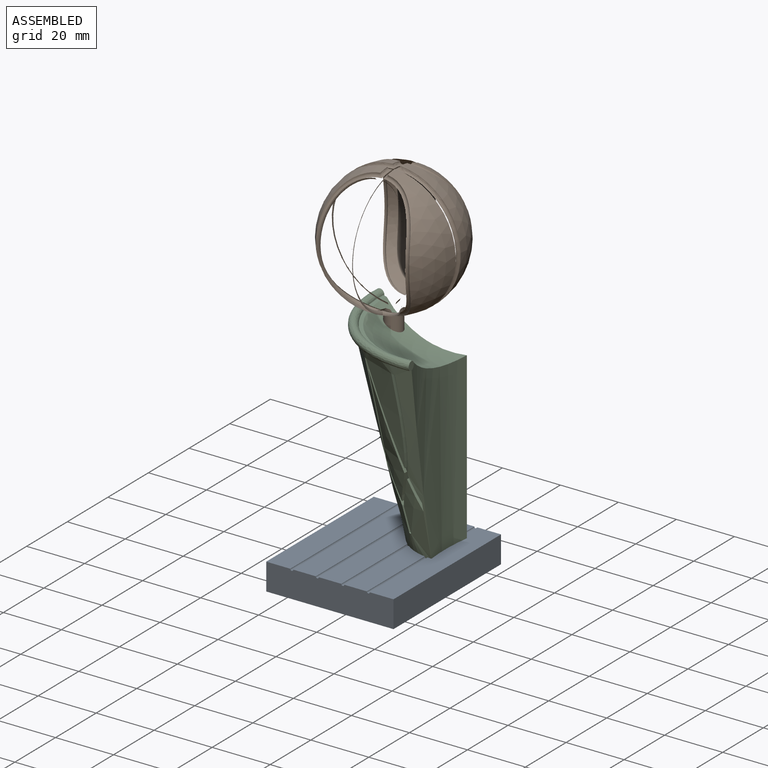
[diagram: assembled view]
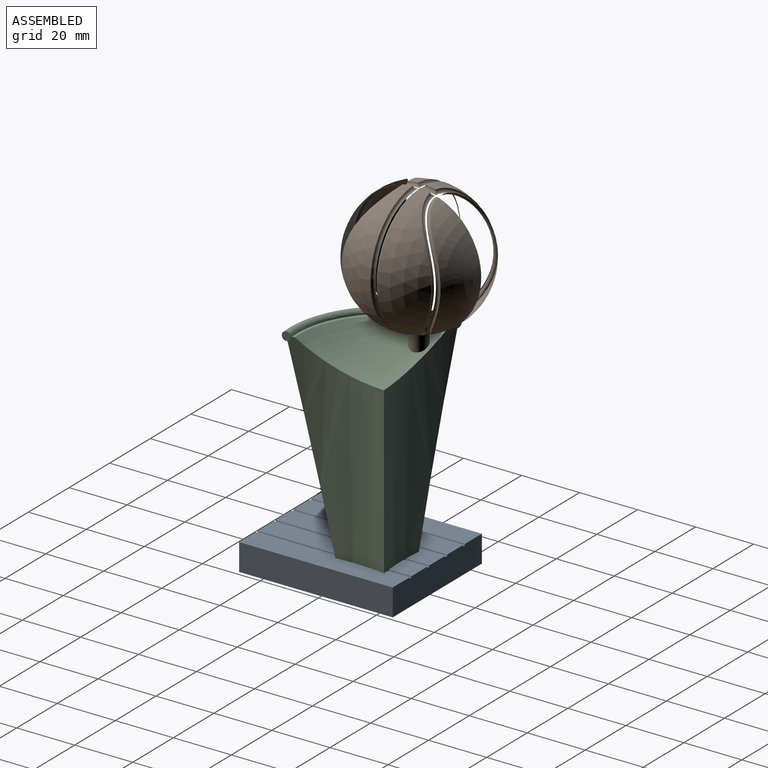
[diagram: assembled view, second angle]
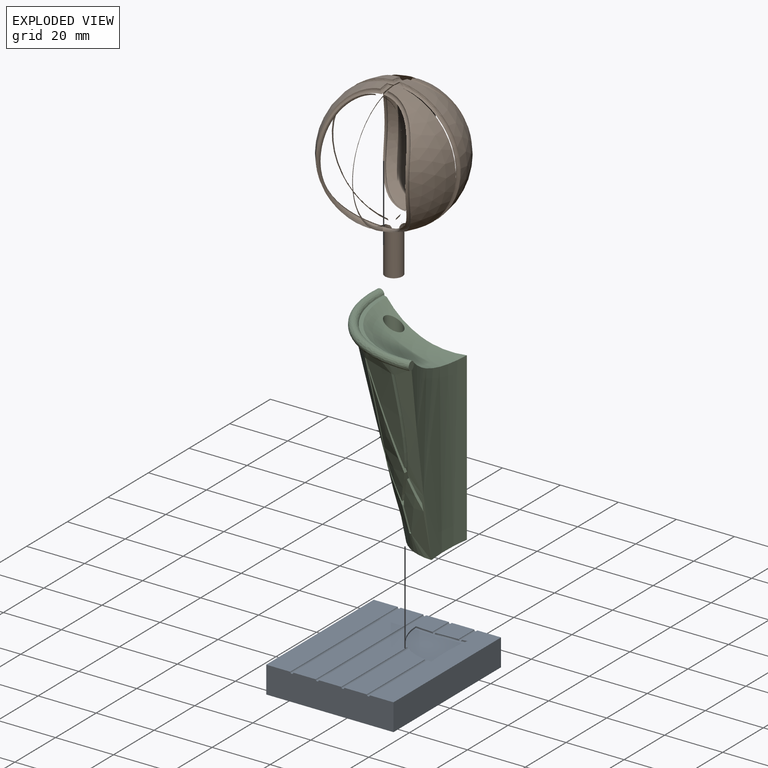
[diagram: exploded view]
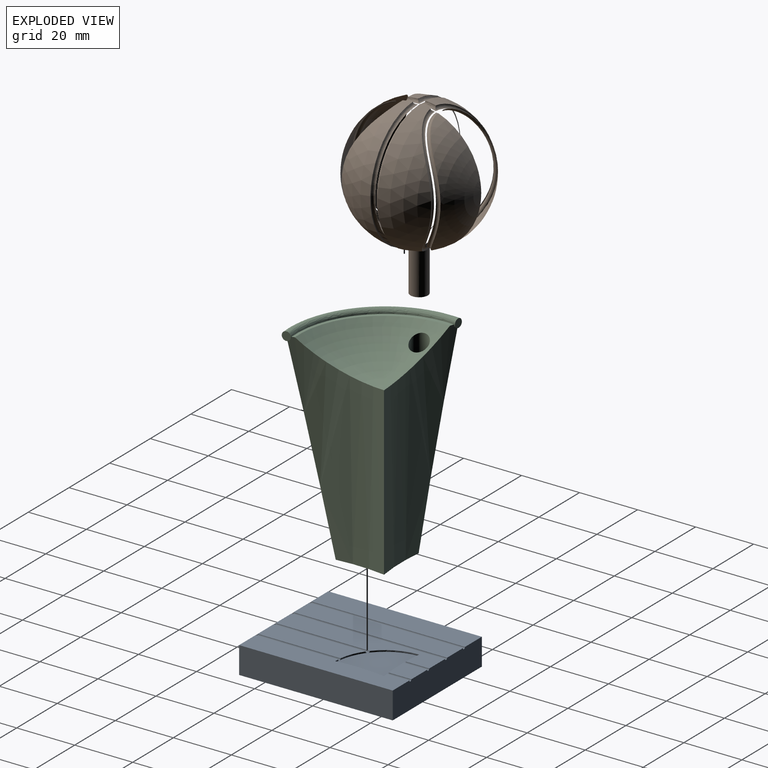
[diagram: exploded view, second angle]
ASSEMBLY  parts=3 mates=2
PART A: 25 faces, bbox 43.9x53x9.3 mm
  f0: plane 31.72x7.8mm, normal (0,0,1), area 232mm2, adj f1,f2,f9,f20
  f1: cylinder r=0.5mm len=28.54mm, axis (0,-1,0), area 44.7mm2, adj f0,f9,f12,f20,f21
  f2: cylinder r=0.5mm len=32.51mm, axis (0,-1,0), area 50.4mm2, adj f0,f5,f9,f20,f22
  f3: plane 52.95x8.3mm, normal (0,0,1), area 439.5mm2, adj f7,f9,f10,f16
  f4: plane 52.95x7.8mm, normal (0,0,1), area 413mm2, adj f7,f9,f15,f16
  f5: plane 52.95x7.8mm, normal (0,0,1), area 361.9mm2, adj f2,f7,f9,f14,f15,f19,f22
  f6: plane 8.12x7.8mm, normal (0,0,1), area 62.6mm2, adj f7,f13,f14,f17
  f7: plane 43.89x9.3mm, normal (0,1,0), area 406.6mm2, adj f3,f4,f5,f6,f8,f10,f11,f12
  f8: plane 52.95x9.3mm, normal (1,0,0), area 492.5mm2, adj f7,f9,f11,f12
  f9: plane 43.89x9.3mm, normal (0,-1,0), area 406.6mm2, adj f0,f1,f2,f3,f4,f5,f8,f10
  f10: plane 52.95x9.3mm, normal (-1,0,0), area 492.5mm2, adj f3,f7,f9,f11
  f11: plane 52.95x43.89mm, normal (0,0,-1), area 2323.9mm2, adj f7,f8,f9,f10
  f12: plane 52.95x8.19mm, normal (0,0,1), area 412.7mm2, adj f1,f7,f8,f9,f13,f18,f21,f24
  f13: cylinder r=0.5mm len=7.78mm, axis (0,-1,0), area 12.1mm2, adj f6,f7,f12,f17,f18
  f14: cylinder r=0.5mm len=8.11mm, axis (0,-1,0), area 12.7mm2, adj f5,f6,f7,f17,f19
  f15: cylinder r=0.5mm len=52.95mm, axis (0,-1,0), area 83.2mm2, adj f4,f5,f7,f9
  f16: cylinder r=0.5mm len=52.95mm, axis (0,-1,0), area 83.2mm2, adj f3,f4,f7,f9
  f17: cylinder r=68.01mm len=8.8mm, axis (0,0,1), area 4mm2, adj f6,f13,f14,f23
  f18: cylinder r=68.01mm len=2.29mm, axis (0,0,1), area 1mm2, adj f12,f13,f23,f24
  f19: cylinder r=68.01mm len=6.48mm, axis (0,0,1), area 3.1mm2, adj f5,f14,f22,f23
  f20: cylinder r=17.14mm len=8.8mm, axis (0,0,1), area 4.4mm2, adj f0,f1,f2,f23
  f21: cylinder r=17.14mm len=1.91mm, axis (0,0,1), area 0.8mm2, adj f1,f12,f23,f24
  f22: cylinder r=17.14mm len=13.21mm, axis (0,0,1), area 7.3mm2, adj f2,f5,f19,f23
  f23: plane 17.57x17.14mm, normal (0,0,1), area 219.8mm2, adj f17,f18,f19,f20,f21,f22,f24
  f24: cylinder r=65.24mm len=17.14mm, axis (0,0,1), area 8.6mm2, adj f12,f18,f21,f23
PART B: 67 faces, bbox 48.2x74.6x61.6 mm
  f0: sphere r=21.25mm, area 4070mm2, adj f1,f5,f6,f10,f11,f15,f16,f20
  f1: bspline ~42.71x15.5mm, area 84.1mm2, adj f0,f2,f3,f4,f5
  f2: torus R=22.28mm, axis (1,0,0), area 7.3mm2, adj f1,f3,f5
  f3: sphere r=22.28mm, area 570.8mm2, adj f1,f2,f4
  f4: cylinder r=15mm len=32.35mm, axis (0,0,-1), area 3048.5mm2, adj f1,f3
  f5: torus R=22.25mm, axis (1,0,0), area 78.6mm2, adj f0,f1,f2
  f6: bspline ~42.7x15.45mm, area 84.1mm2, adj f0,f7,f8,f9,f10
  f7: torus R=22.28mm, axis (1,0,0), area 7.3mm2, adj f6,f8,f10
  f8: sphere r=22.28mm, area 570.8mm2, adj f6,f7,f9
  f9: cylinder r=15mm len=32.35mm, axis (0,0,-1), area 3048.5mm2, adj f6,f8
  f10: torus R=22.25mm, axis (-1,0,0), area 78.6mm2, adj f0,f6,f7
  f11: bspline ~42.71x15.5mm, area 84.1mm2, adj f0,f12,f13,f14,f15
  f12: torus R=22.28mm, axis (1,0,0), area 7.3mm2, adj f11,f13,f15
  f13: sphere r=22.28mm, area 570.8mm2, adj f11,f12,f14
  f14: cylinder r=15mm len=32.35mm, axis (0,0,-1), area 3048.5mm2, adj f11,f13
  f15: torus R=22.25mm, axis (-1,0,0), area 78.6mm2, adj f0,f11,f12
  f16: torus R=22.25mm, axis (1,0,0), area 78.6mm2, adj f0,f17,f20
  f17: torus R=22.28mm, axis (1,0,0), area 7.3mm2, adj f16,f18,f20
  f18: sphere r=22.28mm, area 570.8mm2, adj f17,f19,f20
  f19: cylinder r=15mm len=32.35mm, axis (0,0,-1), area 3048.5mm2, adj f18,f20
  f20: bspline ~42.7x15.45mm, area 84.1mm2, adj f0,f16,f17,f18,f19
  f21: torus R=22.25mm, axis (1,0,0), area 6.1mm2, adj f0,f22,f26,f27,f66
  f22: cylinder r=17.5mm len=10.74mm, axis (0,0,-1), area 2.2mm2, adj f21,f23,f26,f27
  f23: sphere r=22.28mm, area 660.6mm2, adj f22,f24,f25,f26,f28,f30,f64
  f24: cylinder r=17.5mm len=10.73mm, axis (0,0,-1), area 2.2mm2, adj f23,f29,f30
  f25: torus R=22.28mm, axis (0,1,0), area 8.8mm2, adj f23,f26,f64,f66
  f26: torus R=22.28mm, axis (1,0,0), area 0.5mm2, adj f21,f22,f23,f25
  f27: bspline ~14.12x7.66mm, area 18.5mm2, adj f0,f21,f22,f28
  f28: bspline ~34.31x7.36mm, area 56.1mm2, adj f0,f23,f27,f29
  f29: bspline ~12.66x7.26mm, area 18.2mm2, adj f0,f24,f28,f30
  f30: torus R=22.28mm, axis (1,0,0), area 2.6mm2, adj f0,f23,f24,f29,f64
  f31: torus R=22.28mm, axis (1,0,0), area 2.6mm2, adj f0,f32,f33,f37,f64
  f32: cylinder r=17.5mm len=10.73mm, axis (0,0,-1), area 2.2mm2, adj f31,f33,f37
  f33: sphere r=22.28mm, area 660.6mm2, adj f31,f32,f34,f35,f36,f38,f64
  f34: torus R=22.28mm, axis (1,0,0), area 0.5mm2, adj f33,f35,f36,f40
  f35: cylinder r=17.5mm len=10.74mm, axis (0,0,-1), area 2.2mm2, adj f33,f34,f39,f40
  f36: torus R=22.28mm, axis (0,1,0), area 8.8mm2, adj f33,f34,f41,f64
  f37: bspline ~13.16x7.28mm, area 18.2mm2, adj f0,f31,f32,f38
  f38: bspline ~33.93x7.36mm, area 56.1mm2, adj f0,f33,f37,f39
  f39: bspline ~12.88x6.74mm, area 18.5mm2, adj f0,f35,f38,f40
  f40: torus R=22.25mm, axis (-1,0,0), area 6.1mm2, adj f0,f34,f35,f39,f41
  f41: torus R=22.25mm, axis (0,-1,0), area 92.8mm2, adj f0,f36,f40,f64
  f42: torus R=22.25mm, axis (0,1,0), area 92.8mm2, adj f0,f43,f48,f64
  f43: torus R=22.28mm, axis (0,1,0), area 8.8mm2, adj f42,f44,f46,f64
  f44: torus R=22.28mm, axis (1,0,0), area 0.5mm2, adj f43,f45,f46,f48
  f45: cylinder r=17.5mm len=10.74mm, axis (0,0,-1), area 2.2mm2, adj f44,f46,f48,f49
  f46: sphere r=22.28mm, area 664.5mm2, adj f43,f44,f45,f47,f50,f52,f64
  f47: cylinder r=17.5mm len=10.73mm, axis (0,0,-1), area 2.2mm2, adj f46,f51,f52
  f48: torus R=22.25mm, axis (-1,0,0), area 6.2mm2, adj f0,f42,f44,f45,f49
  f49: bspline ~14.12x7.66mm, area 18.5mm2, adj f0,f45,f48,f50
  f50: bspline ~33.93x7.36mm, area 56.1mm2, adj f0,f46,f49,f51
  f51: bspline ~12.66x7.26mm, area 18.2mm2, adj f0,f47,f50,f52
  f52: torus R=22.28mm, axis (1,0,0), area 2.6mm2, adj f0,f46,f47,f51,f64
  f53: torus R=22.28mm, axis (1,0,0), area 2.6mm2, adj f0,f54,f55,f59,f64
  f54: cylinder r=17.5mm len=10.73mm, axis (0,0,-1), area 2.2mm2, adj f53,f55,f59
  f55: sphere r=22.28mm, area 664.5mm2, adj f53,f54,f56,f57,f58,f60,f64
  f56: torus R=22.28mm, axis (1,0,0), area 0.5mm2, adj f55,f57,f58,f62
  f57: cylinder r=17.5mm len=10.74mm, axis (0,0,-1), area 2.2mm2, adj f55,f56,f61,f62
  f58: torus R=22.28mm, axis (0,1,0), area 8.8mm2, adj f55,f56,f63,f64
  f59: bspline ~13.16x7.28mm, area 18.2mm2, adj f0,f53,f54,f60
  f60: bspline ~33.93x7.36mm, area 56.1mm2, adj f0,f55,f59,f61
  f61: bspline ~12.88x6.74mm, area 18.5mm2, adj f0,f57,f60,f62
  f62: torus R=22.25mm, axis (1,0,0), area 6.2mm2, adj f0,f56,f57,f61,f63
  f63: torus R=22.25mm, axis (0,1,0), area 92.8mm2, adj f0,f58,f62,f64
  f64: cylinder r=3mm len=16.47mm, axis (0,0,-1), area 299.6mm2, adj f0,f23,f25,f30,f31,f33,f36,f41
  f65: plane 6x6mm, normal (0,0,-1), area 28.3mm2, adj f64
  f66: torus R=22.25mm, axis (0,-1,0), area 92.8mm2, adj f0,f21,f25,f64
PART C: 69 faces, bbox 38.9x38.8x70 mm
  f0: plane 33.17x32.97mm, normal (0,0,1), area 62.6mm2, adj f3,f4,f63,f66
  f1: cone r=17.04mm half-angle=12.5deg, axis (0,0,1), area 1943.8mm2, adj f2,f3,f4,f12,f13,f14,f15,f16
  f2: plane 17.35x16.92mm, normal (0,0,-1), area 213.7mm2, adj f1,f3,f4
  f3: cylinder r=68.11mm len=67mm, axis (0,0,1), area 1466.3mm2, adj f0,f1,f2,f4,f63,f66
  f4: cylinder r=65.34mm len=67mm, axis (0,0,1), area 1436.5mm2, adj f0,f1,f2,f3,f63,f66
  f5: bspline ~0.73x0.66mm, area 0mm2, adj f6,f59,f60,f61
  f6: cone r=23.18mm half-angle=77.5deg, axis (0,0,-1), area 0mm2, adj f5,f7,f60,f61
  f7: bspline ~10.14x6.09mm, area 11.4mm2, adj f6,f8,f60,f61
  f8: bspline ~1.5x1.14mm, area 1.5mm2, adj f7,f9,f60,f61
  f9: bspline ~11.43x4.86mm, area 12.4mm2, adj f8,f10,f60,f61
  f10: bspline ~30.84x10.65mm, area 32.4mm2, adj f9,f11,f60,f61
  f11: bspline ~5.79x2.06mm, area 5.7mm2, adj f10,f59,f60,f61
  f12: bspline ~3.75x1.6mm, area 3.8mm2, adj f1,f13,f58,f60
  f13: bspline ~32.71x8.39mm, area 33.4mm2, adj f1,f12,f14,f60
  f14: cone r=30.79mm half-angle=77.5deg, axis (0,0,-1), area 1.2mm2, adj f1,f13,f15,f60
  f15: bspline ~0.99x0.33mm, area 0.1mm2, adj f1,f14,f16,f60
  f16: bspline ~8.51x2.78mm, area 8.5mm2, adj f1,f15,f17,f60
  f17: bspline ~26.13x6.97mm, area 26.7mm2, adj f1,f16,f18,f60
  f18: bspline ~0.98x0.31mm, area 0.1mm2, adj f1,f17,f19,f60
  f19: bspline ~8.61x4.01mm, area 9.4mm2, adj f1,f18,f20,f60
  f20: bspline ~2.83x1.55mm, area 2.7mm2, adj f1,f19,f21,f60
  f21: bspline ~0.99x0.27mm, area 0.1mm2, adj f1,f20,f22,f60
  f22: bspline ~9.6x4.51mm, area 10.5mm2, adj f1,f21,f23,f60
  f23: bspline ~1.19x1.01mm, area 0.9mm2, adj f1,f22,f24,f60
  f24: bspline ~10.46x4.44mm, area 11.4mm2, adj f1,f23,f25,f60
  f25: cone r=20.34mm half-angle=77.5deg, axis (0,0,-1), area 0mm2, adj f1,f24,f26,f60
  f26: bspline ~8.89x2.38mm, area 8.9mm2, adj f1,f25,f27,f60
  f27: cone r=18.42mm half-angle=77.5deg, axis (0,0,-1), area 1mm2, adj f1,f26,f28,f60
  f28: bspline ~8.89x2.31mm, area 8.9mm2, adj f1,f27,f29,f60
  f29: bspline ~11.69x6.73mm, area 13.1mm2, adj f1,f28,f30,f60
  f30: bspline ~1.47x1.27mm, area 1.4mm2, adj f1,f29,f31,f60
  f31: bspline ~10.43x5.99mm, area 11.6mm2, adj f1,f30,f32,f60
  f32: cone r=20.34mm half-angle=77.5deg, axis (0,0,-1), area 0mm2, adj f1,f31,f33,f60
  f33: bspline ~8.89x2.23mm, area 8.9mm2, adj f1,f32,f34,f60
  f34: cone r=18.42mm half-angle=77.5deg, axis (0,0,-1), area 1mm2, adj f1,f33,f35,f60
  f35: bspline ~8.89x2.3mm, area 8.9mm2, adj f1,f34,f36,f60
  f36: bspline ~11.36x4.88mm, area 12.3mm2, adj f1,f35,f37,f60
  f37: bspline ~3.49x1.59mm, area 3.6mm2, adj f1,f36,f38,f60
  f38: bspline ~8.09x3.87mm, area 8.8mm2, adj f1,f37,f39,f60
  f39: bspline ~1.43x1.27mm, area 1.4mm2, adj f1,f38,f40,f60
  f40: bspline ~11.81x5.5mm, area 12.9mm2, adj f1,f39,f41,f60
  f41: bspline ~34.53x8.92mm, area 35.4mm2, adj f1,f40,f42,f60
  f42: cone r=30.79mm half-angle=77.5deg, axis (0,0,-1), area 1.2mm2, adj f1,f41,f43,f60
  f43: bspline ~31.52x8.16mm, area 32.2mm2, adj f1,f42,f44,f60
  f44: bspline ~1.33x1.25mm, area 1.2mm2, adj f1,f43,f45,f60
  f45: bspline ~32.63x10.99mm, area 34.2mm2, adj f1,f44,f46,f60
  f46: cone r=30.79mm half-angle=77.5deg, axis (0,0,-1), area 1mm2, adj f1,f45,f47,f60
  f47: bspline ~31.47x8.79mm, area 32.3mm2, adj f1,f46,f48,f60
  f48: bspline ~1.82x1.3mm, area 1.7mm2, adj f1,f47,f49,f60
  f49: bspline ~33.07x9.31mm, area 34mm2, adj f1,f48,f50,f60
  f50: cone r=30.79mm half-angle=77.5deg, axis (0,0,-1), area 1mm2, adj f1,f49,f58,f60
  f51: bspline ~1.53x1.33mm, area 1.4mm2, adj f52,f57,f60,f62
  f52: bspline ~11.41x6.56mm, area 12.8mm2, adj f51,f53,f60,f62
  f53: bspline ~30.74x9.03mm, area 31.7mm2, adj f52,f54,f60,f62
  f54: bspline ~2.6x1.25mm, area 2.5mm2, adj f53,f55,f60,f62
  f55: bspline ~28.27x9.61mm, area 29.6mm2, adj f54,f56,f60,f62
  f56: bspline ~0.96x0.32mm, area 0.1mm2, adj f55,f57,f60,f62
  f57: bspline ~10.1x4.57mm, area 11mm2, adj f51,f56,f60,f62
  f58: bspline ~29.18x9.96mm, area 30.6mm2, adj f1,f12,f50,f60
  f59: bspline ~25.26x7.69mm, area 26mm2, adj f5,f11,f60,f61
  f60: cone r=16.06mm half-angle=12.5deg, axis (0,0,1), area 320.8mm2, adj f5,f6,f7,f8,f9,f10,f11,f12
  f61: cone r=17.04mm half-angle=12.5deg, axis (0,0,1), area 223.5mm2, adj f5,f6,f7,f8,f9,f10,f11,f59
  f62: cone r=17.04mm half-angle=12.5deg, axis (0,0,1), area 217.4mm2, adj f51,f52,f53,f54,f55,f56,f57
  f63: bspline ~38.86x38.78mm, area 423.5mm2, adj f0,f1,f3,f4,f64,f65
  f64: plane 3x2.99mm, normal (1,0.09,0), area 7.1mm2, adj f63
  f65: plane 3x2.98mm, normal (0.11,0.99,0), area 7.1mm2, adj f63
  f66: torus R=3.2mm, axis (0,0,1), area 731.3mm2, adj f0,f3,f4,f68
  f67: cone r=0mm half-angle=59deg, axis (0,0,1), area 34.1mm2, adj f68
  f68: cylinder r=3.05mm len=11.11mm, axis (0,0,1), area 192.4mm2, adj f66,f67
PLACE A t=(-46.92,-14.09,-33.22)mm
PLACE B t=(-46.92,-14.08,-33.72)mm
PLACE C t=(-46.92,-14.08,-33.72)mm
MATE fastened C.f2 <-> A.f23  axis (0,0,-1) through (24.71,31.88,-24.43)mm
MATE fastened B.f64 <-> C.f67  axis (0,0,-1) through (9.72,35.54,27.57)mm
